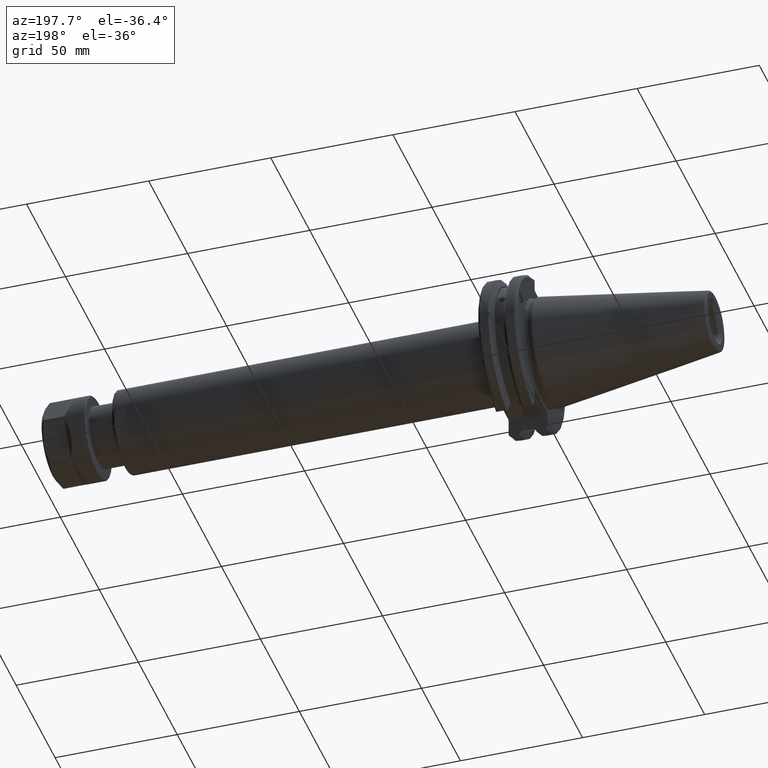
[diagram: clean part render]
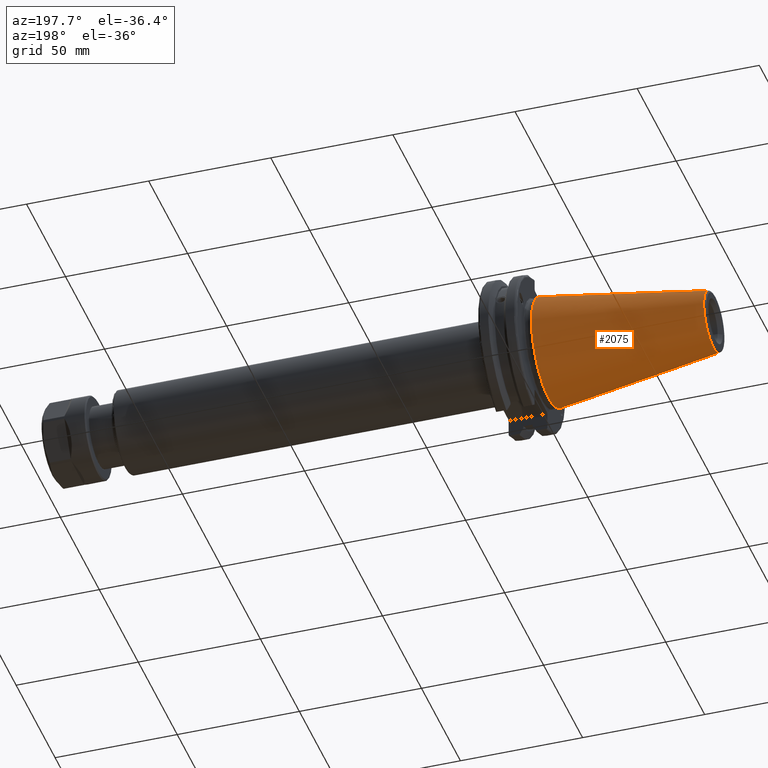
[diagram: same view with one face highlighted and labeled with its STEP entity id]
A machine part, auxiliary view. The second image highlights one B-rep face of the part: STEP entity #2075.
In plain terms, the highlighted conical surface has half-angle 8.297 deg.
Its self-contained STEP definition (entity closure, byte-faithful):
#324=FACE_OUTER_BOUND('',#457,.T.);
#457=EDGE_LOOP('',(#1731,#1732,#1733,#1734,#1735));
#602=LINE('',#3818,#724);
#724=VECTOR('',#2840,17.2484375);
#832=CIRCLE('',#2349,12.3966635780937);
#833=CIRCLE('',#2350,12.3966635780937);
#837=CIRCLE('',#2356,22.225);
#1021=VERTEX_POINT('',#3805);
#1022=VERTEX_POINT('',#3806);
#1025=VERTEX_POINT('',#3816);
#1281=EDGE_CURVE('',#1021,#1022,#832,.T.);
#1282=EDGE_CURVE('',#1022,#1021,#833,.T.);
#1286=EDGE_CURVE('',#1025,#1025,#837,.T.);
#1287=EDGE_CURVE('',#1025,#1022,#602,.T.);
#1731=ORIENTED_EDGE('',*,*,#1286,.F.);
#1732=ORIENTED_EDGE('',*,*,#1287,.T.);
#1733=ORIENTED_EDGE('',*,*,#1281,.F.);
#1734=ORIENTED_EDGE('',*,*,#1282,.F.);
#1735=ORIENTED_EDGE('',*,*,#1287,.F.);
#2006=CONICAL_SURFACE('',#2355,17.2484375,0.144812498238939);
#2075=ADVANCED_FACE('',(#324),#2006,.T.);
#2349=AXIS2_PLACEMENT_3D('',#3807,#2824,#2825);
#2350=AXIS2_PLACEMENT_3D('',#3808,#2826,#2827);
#2355=AXIS2_PLACEMENT_3D('',#3815,#2836,#2837);
#2356=AXIS2_PLACEMENT_3D('',#3817,#2838,#2839);
#2824=DIRECTION('center_axis',(-1.,0.,0.));
#2825=DIRECTION('ref_axis',(0.,-1.,3.06161699786838E-17));
#2826=DIRECTION('center_axis',(-1.,0.,0.));
#2827=DIRECTION('ref_axis',(0.,-1.,3.06161699786838E-17));
#2836=DIRECTION('center_axis',(1.,0.,0.));
#2837=DIRECTION('ref_axis',(0.,1.,0.));
#2838=DIRECTION('center_axis',(1.,0.,0.));
#2839=DIRECTION('ref_axis',(0.,0.,-1.));
#2840=DIRECTION('',(-0.989532981063282,0.144306893071729,1.76724974695192E-17));
#3805=CARTESIAN_POINT('',(-67.3943068930717,-1.5181534371019E-15,12.3966635780937));
#3806=CARTESIAN_POINT('',(-67.3943068930718,-12.3966635780937,-1.5181534371019E-15));
#3807=CARTESIAN_POINT('Origin',(-67.3943068930717,0.,-1.89769179637738E-15));
#3808=CARTESIAN_POINT('Origin',(-67.3943068930717,0.,-1.89769179637738E-15));
#3815=CARTESIAN_POINT('Origin',(-34.125,0.,0.));
#3816=CARTESIAN_POINT('',(0.,-22.225,-2.72177751110499E-15));
#3817=CARTESIAN_POINT('Origin',(0.,0.,0.));
#3818=CARTESIAN_POINT('',(-34.125,-17.2484375,-2.11232437746682E-15));